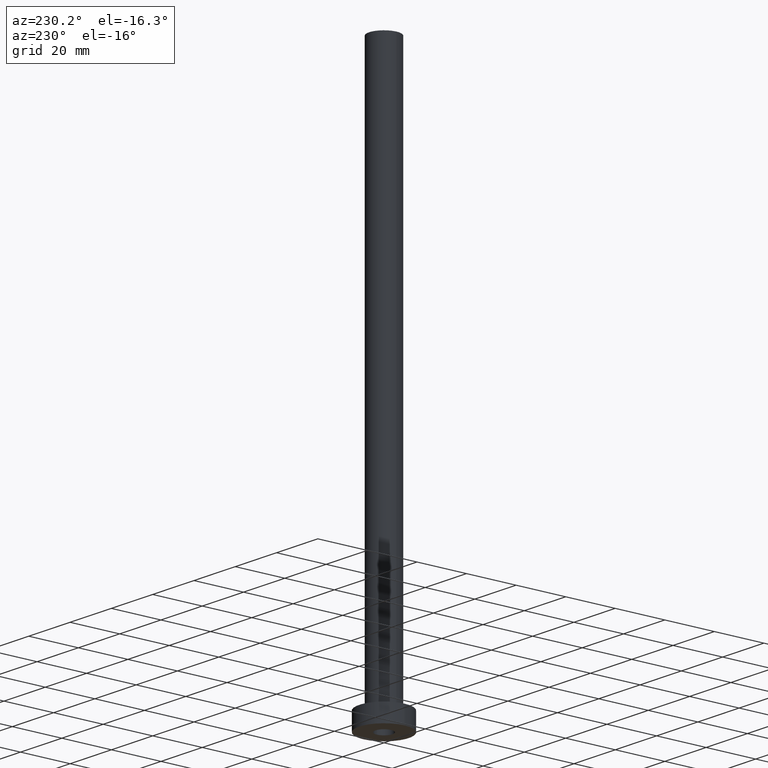
[diagram: clean part render]
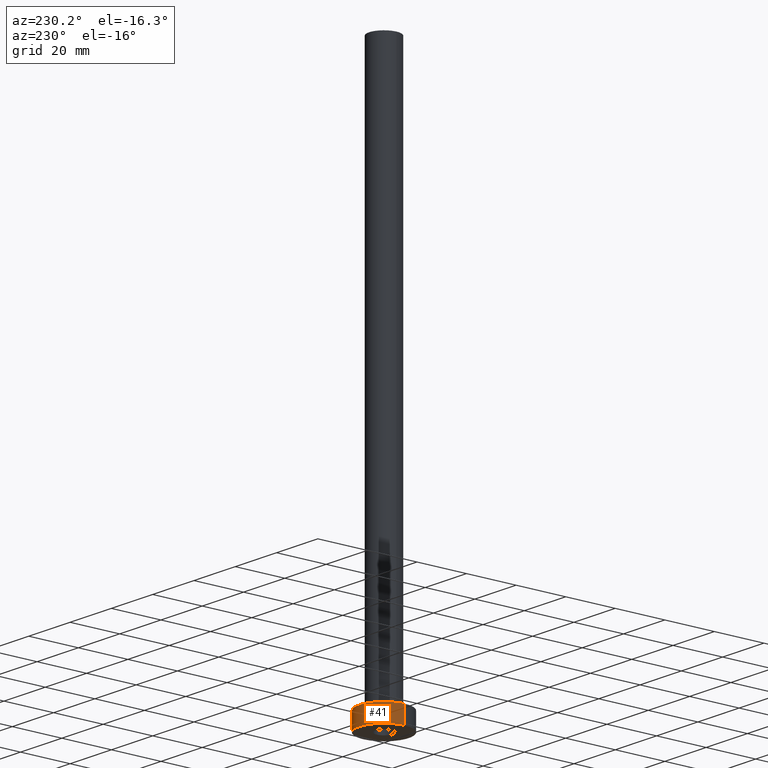
[diagram: same view with one face highlighted and labeled with its STEP entity id]
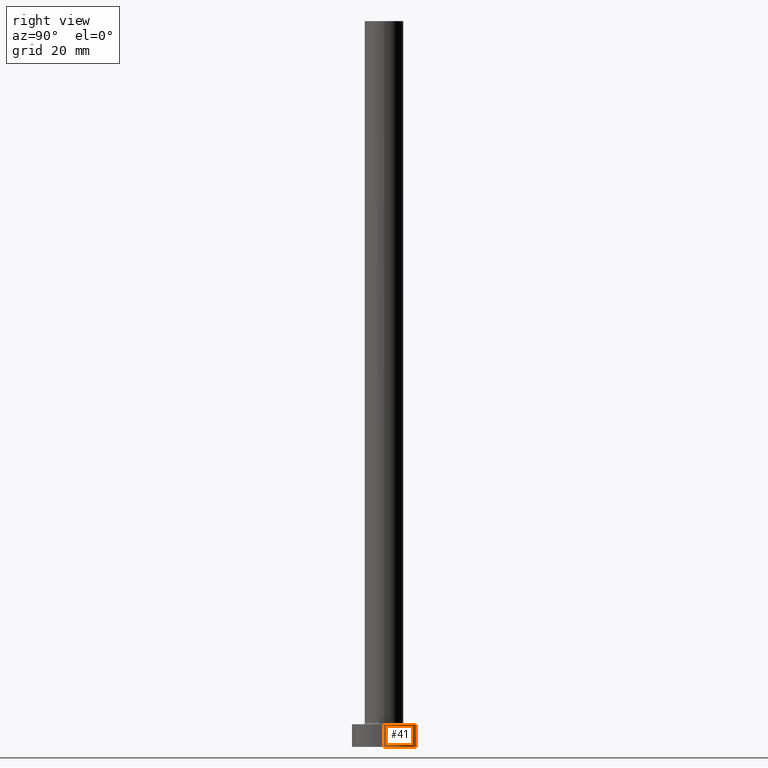
[diagram: same view with one face highlighted and labeled with its STEP entity id]
A machine part, auxiliary view. The second image highlights one B-rep face of the part: STEP entity #41.
A second angle (right view) of the same face is appended — the face is thin or edge-on in the first view.
In plain terms, the highlighted cylindrical surface (edge-blend (fillet) strip) has radius 10 mm, axis along (-0, -0, -1).
Its self-contained STEP definition (entity closure, byte-faithful):
#13 = EDGE_LOOP ( 'NONE', ( #429, #185, #48, #92 ) ) ;
#26 = FACE_OUTER_BOUND ( 'NONE', #13, .T. ) ;
#29 = AXIS2_PLACEMENT_3D ( 'NONE', #338, #102, #70 ) ;
#35 = DIRECTION ( 'NONE',  ( -0.000000000000000000, -0.000000000000000000, -1.000000000000000000 ) ) ;
#41 = ADVANCED_FACE ( 'NONE', ( #26 ), #350, .T. ) ;
#45 = EDGE_CURVE ( 'NONE', #83, #90, #142, .T. ) ;
#48 = ORIENTED_EDGE ( 'NONE', *, *, #226, .T. ) ;
#55 = CARTESIAN_POINT ( 'NONE',  ( 10.00000000000000000, 1.224646799147353256E-15, 0.000000000000000000 ) ) ;
#70 = DIRECTION ( 'NONE',  ( 1.000000000000000000, 0.000000000000000000, 0.000000000000000000 ) ) ;
#83 = VERTEX_POINT ( 'NONE', #190 ) ;
#90 = VERTEX_POINT ( 'NONE', #404 ) ;
#92 = ORIENTED_EDGE ( 'NONE', *, *, #45, .F. ) ;
#102 = DIRECTION ( 'NONE',  ( 0.000000000000000000, 0.000000000000000000, 1.000000000000000000 ) ) ;
#103 = DIRECTION ( 'NONE',  ( -1.000000000000000000, 0.000000000000000000, 0.000000000000000000 ) ) ;
#122 = EDGE_CURVE ( 'NONE', #410, #176, #227, .T. ) ;
#125 = DIRECTION ( 'NONE',  ( -0.000000000000000000, -0.000000000000000000, -1.000000000000000000 ) ) ;
#131 = VECTOR ( 'NONE', #35, 1000.000000000000000 ) ;
#142 = LINE ( 'NONE', #242, #131 ) ;
#176 = VERTEX_POINT ( 'NONE', #55 ) ;
#181 = AXIS2_PLACEMENT_3D ( 'NONE', #267, #416, #380 ) ;
#185 = ORIENTED_EDGE ( 'NONE', *, *, #122, .T. ) ;
#190 = CARTESIAN_POINT ( 'NONE',  ( -10.00000000000000000, 0.000000000000000000, 7.000000000000000000 ) ) ;
#226 = EDGE_CURVE ( 'NONE', #176, #90, #268, .T. ) ;
#227 = LINE ( 'NONE', #257, #329 ) ;
#242 = CARTESIAN_POINT ( 'NONE',  ( -10.00000000000000000, 0.000000000000000000, 7.000000000000000000 ) ) ;
#252 = CIRCLE ( 'NONE', #181, 10.00000000000000000 ) ;
#257 = CARTESIAN_POINT ( 'NONE',  ( 10.00000000000000000, 1.224646799147353256E-15, 7.000000000000000000 ) ) ;
#267 = CARTESIAN_POINT ( 'NONE',  ( 0.000000000000000000, 0.000000000000000000, 7.000000000000000000 ) ) ;
#268 = CIRCLE ( 'NONE', #29, 10.00000000000000000 ) ;
#315 = EDGE_CURVE ( 'NONE', #410, #83, #252, .T. ) ;
#322 = AXIS2_PLACEMENT_3D ( 'NONE', #415, #342, #103 ) ;
#329 = VECTOR ( 'NONE', #125, 1000.000000000000000 ) ;
#338 = CARTESIAN_POINT ( 'NONE',  ( 0.000000000000000000, 0.000000000000000000, 0.000000000000000000 ) ) ;
#342 = DIRECTION ( 'NONE',  ( -0.000000000000000000, -0.000000000000000000, -1.000000000000000000 ) ) ;
#350 = CYLINDRICAL_SURFACE ( 'NONE', #322, 10.00000000000000000 ) ;
#380 = DIRECTION ( 'NONE',  ( 1.000000000000000000, 0.000000000000000000, 0.000000000000000000 ) ) ;
#404 = CARTESIAN_POINT ( 'NONE',  ( -10.00000000000000000, 0.000000000000000000, 0.000000000000000000 ) ) ;
#410 = VERTEX_POINT ( 'NONE', #445 ) ;
#415 = CARTESIAN_POINT ( 'NONE',  ( 0.000000000000000000, 0.000000000000000000, 7.000000000000000000 ) ) ;
#416 = DIRECTION ( 'NONE',  ( 0.000000000000000000, 0.000000000000000000, 1.000000000000000000 ) ) ;
#429 = ORIENTED_EDGE ( 'NONE', *, *, #315, .F. ) ;
#445 = CARTESIAN_POINT ( 'NONE',  ( 10.00000000000000000, 1.224646799147353256E-15, 7.000000000000000000 ) ) ;